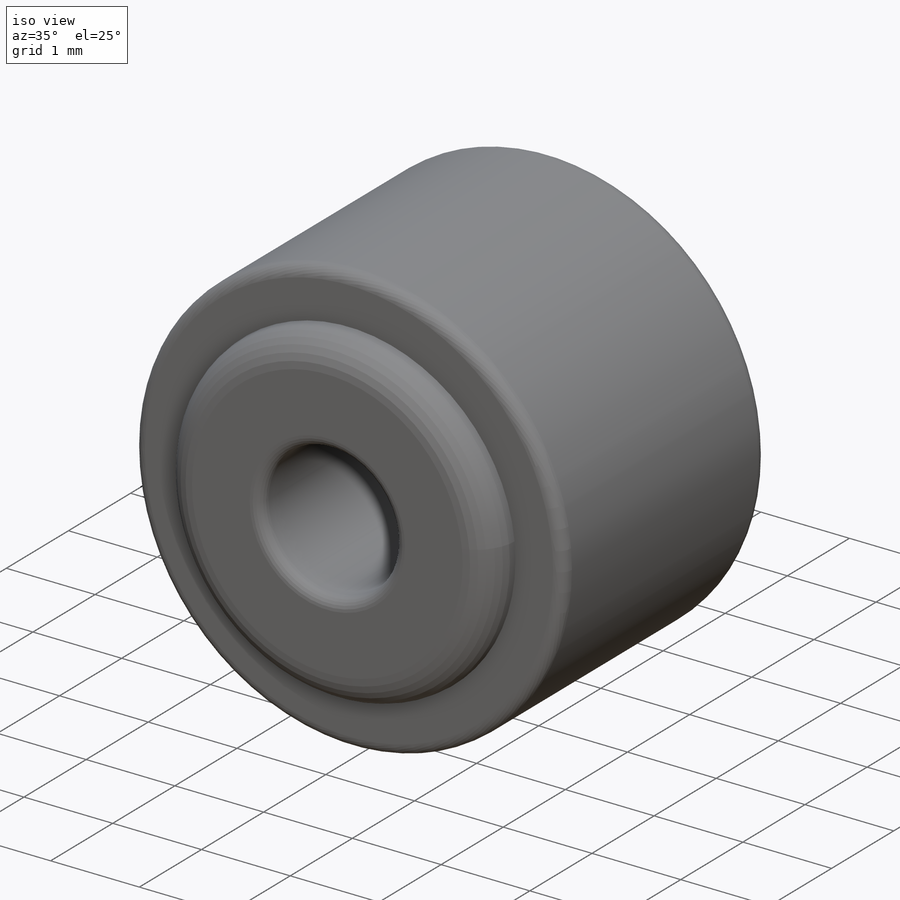
[diagram: iso view]
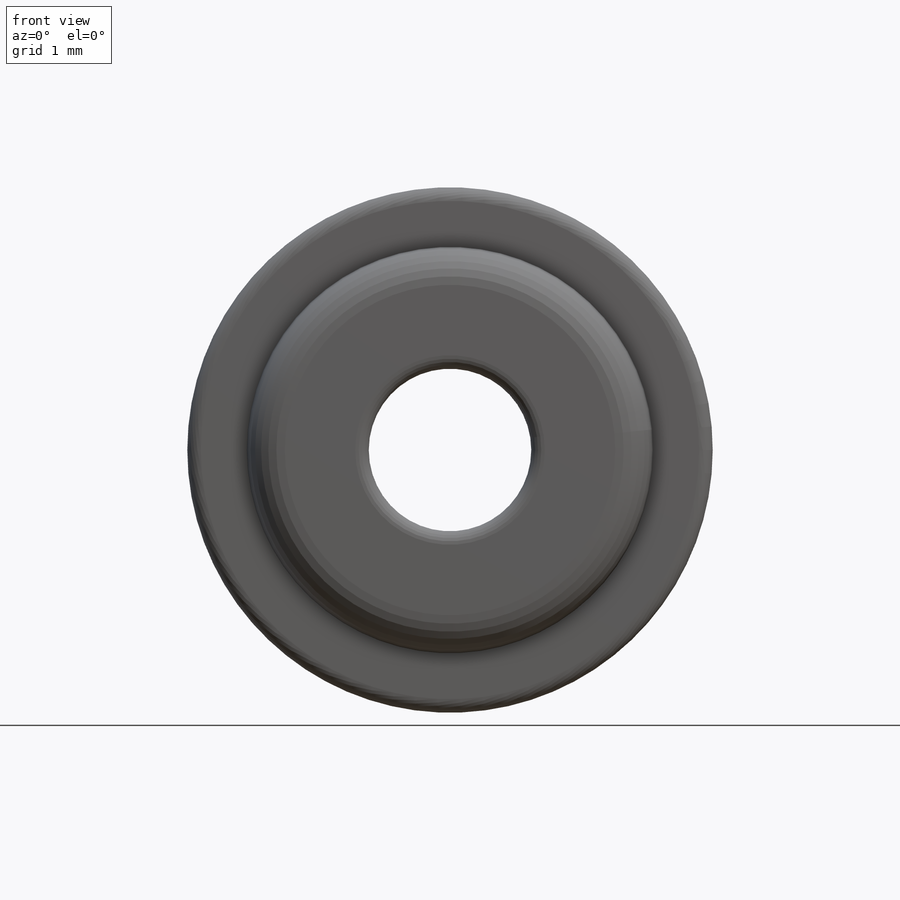
[diagram: front view]
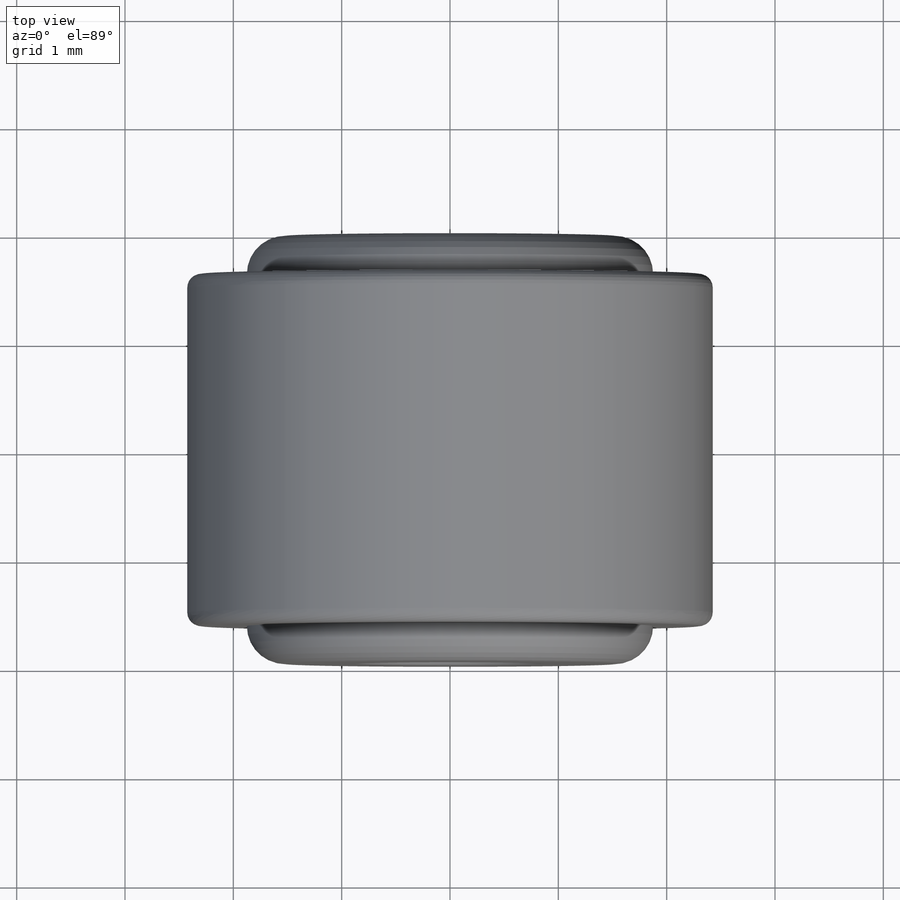
[diagram: top view]
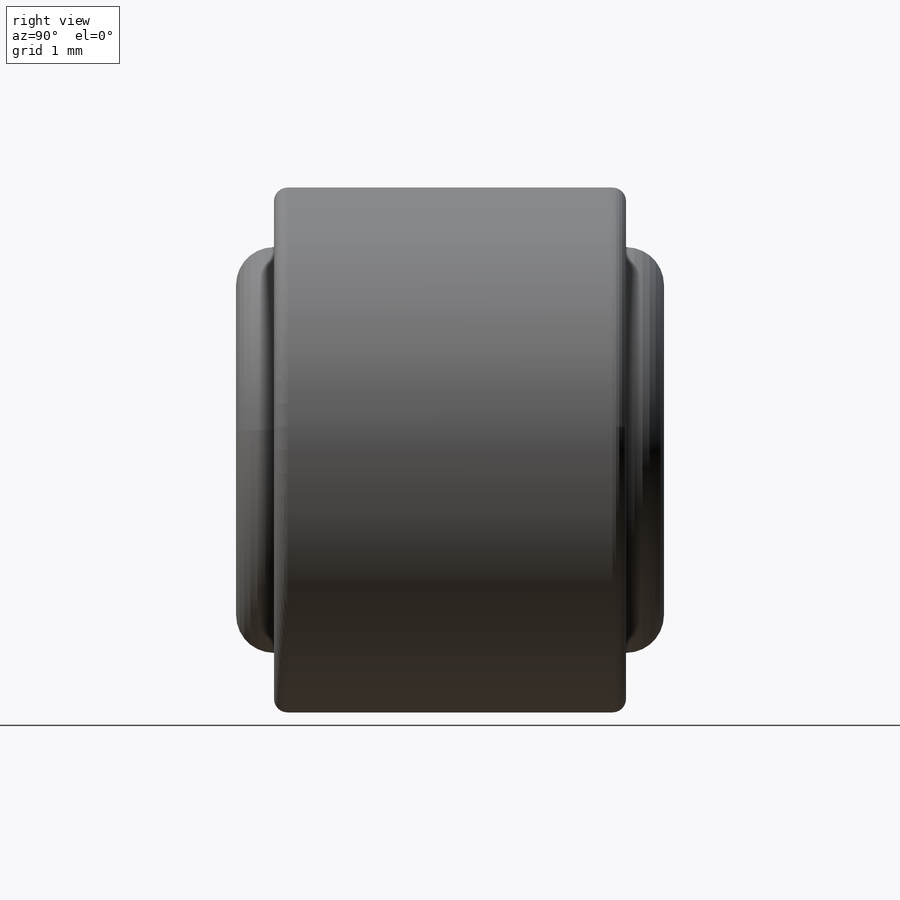
[diagram: right view]
SOLIDWORKS PART (.sldprt)
format: sldprt  version: not decoded by parser v0  size: 240,640 bytes
history: native  units: mm
features: sketch x3, extrude x2, fillet x2, material x1, mirror x1, cut_extrude x1 (+16 scaffold rows collapsed)
feature tree (26):
  scaffold x16  (default folders/planes/origin — collapsed)
  material  "PE High Density"
  sketch  "Sketch1"  dims[D1=4.85mm]
  extrude  "Extrude1"  Depth=3.25mm
  sketch  "Sketch2"  dims[D1=3.75mm]
  extrude  "Extrude2"  Depth=0.35mm
  mirror  "Mirror1"
  fillet  "Fillet1"  Radius=0.35mm
  sketch  "Sketch3"  dims[D1=1.5mm]
  cut_extrude  "Extrude4"  [1 undecoded]
  fillet  "Fillet2"  Radius=0.125mm
decode coverage: 7 of 9 modeling features carry decoded parameters
note: 1 parameter value undecoded
note: suppression state not decoded; provenance and decode notes live in map.json
